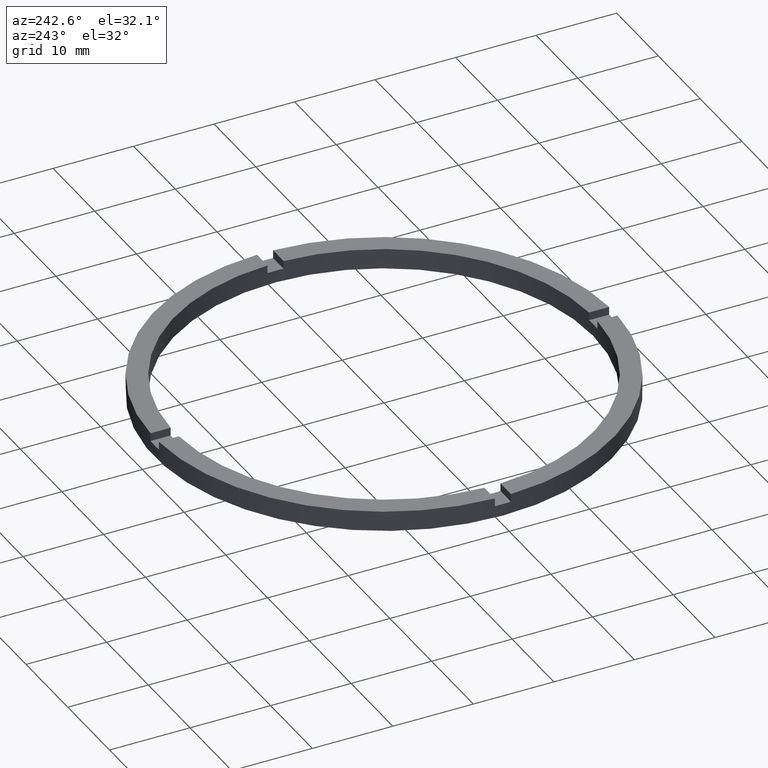
[diagram: clean part render]
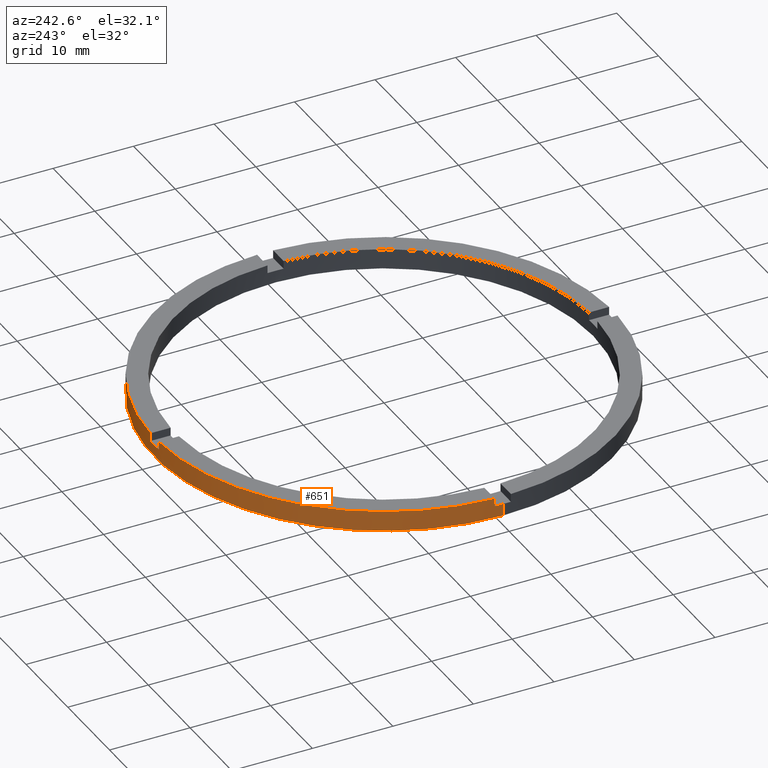
[diagram: same view with one face highlighted and labeled with its STEP entity id]
A machine part, auxiliary view. The second image highlights one B-rep face of the part: STEP entity #651.
In plain terms, the highlighted cylindrical surface (partial cylindrical patch) has radius 28.5 mm, axis along (-0, -0, -1).
Its self-contained STEP definition (entity closure, byte-faithful):
#12 = DIRECTION ( 'NONE',  ( 1.000000000000000000, 0.000000000000000000, 0.000000000000000000 ) ) ;
#25 = DIRECTION ( 'NONE',  ( -0.000000000000000000, -0.000000000000000000, -1.000000000000000000 ) ) ;
#33 = VERTEX_POINT ( 'NONE', #556 ) ;
#36 = ORIENTED_EDGE ( 'NONE', *, *, #635, .T. ) ;
#49 = ORIENTED_EDGE ( 'NONE', *, *, #539, .T. ) ;
#52 = DIRECTION ( 'NONE',  ( 0.000000000000000000, 0.000000000000000000, 1.000000000000000000 ) ) ;
#72 = ORIENTED_EDGE ( 'NONE', *, *, #192, .F. ) ;
#75 = CARTESIAN_POINT ( 'NONE',  ( 0.000000000000000000, 0.000000000000000000, 1.500000000000000000 ) ) ;
#81 = DIRECTION ( 'NONE',  ( 0.000000000000000000, 0.000000000000000000, 1.000000000000000000 ) ) ;
#84 = DIRECTION ( 'NONE',  ( 0.000000000000000000, 0.000000000000000000, 1.000000000000000000 ) ) ;
#103 = VERTEX_POINT ( 'NONE', #449 ) ;
#117 = CARTESIAN_POINT ( 'NONE',  ( 28.48245073725223264, 0.9999999999998432365, 2.500000000000000000 ) ) ;
#125 = CARTESIAN_POINT ( 'NONE',  ( -1.000000000000026423, 28.48245073725222909, 1.500000000000000000 ) ) ;
#127 = CARTESIAN_POINT ( 'NONE',  ( 0.000000000000000000, 0.000000000000000000, 0.000000000000000000 ) ) ;
#144 = DIRECTION ( 'NONE',  ( -0.000000000000000000, -0.000000000000000000, -1.000000000000000000 ) ) ;
#165 = CIRCLE ( 'NONE', #336, 28.50000000000000000 ) ;
#185 = VECTOR ( 'NONE', #658, 1000.000000000000000 ) ;
#187 = VECTOR ( 'NONE', #613, 1000.000000000000000 ) ;
#188 = DIRECTION ( 'NONE',  ( 0.000000000000000000, 0.000000000000000000, 1.000000000000000000 ) ) ;
#192 = EDGE_CURVE ( 'NONE', #557, #103, #165, .T. ) ;
#204 = DIRECTION ( 'NONE',  ( 1.000000000000000000, 0.000000000000000000, 0.000000000000000000 ) ) ;
#206 = AXIS2_PLACEMENT_3D ( 'NONE', #535, #188, #744 ) ;
#207 = LINE ( 'NONE', #663, #187 ) ;
#212 = CIRCLE ( 'NONE', #576, 28.50000000000000000 ) ;
#214 = VECTOR ( 'NONE', #332, 1000.000000000000000 ) ;
#216 = CIRCLE ( 'NONE', #564, 28.50000000000000000 ) ;
#221 = VERTEX_POINT ( 'NONE', #125 ) ;
#225 = AXIS2_PLACEMENT_3D ( 'NONE', #718, #144, #710 ) ;
#226 = DIRECTION ( 'NONE',  ( 1.000000000000000000, 0.000000000000000000, 0.000000000000000000 ) ) ;
#235 = CARTESIAN_POINT ( 'NONE',  ( -1.000000000000026423, 28.48245073725222909, 2.500000000000000000 ) ) ;
#240 = DIRECTION ( 'NONE',  ( 1.000000000000000000, 0.000000000000000000, 0.000000000000000000 ) ) ;
#242 = CARTESIAN_POINT ( 'NONE',  ( 28.48245073725223264, 0.9999999999998432365, 2.500000000000000000 ) ) ;
#262 = AXIS2_PLACEMENT_3D ( 'NONE', #661, #580, #240 ) ;
#264 = EDGE_CURVE ( 'NONE', #584, #221, #715, .T. ) ;
#272 = DIRECTION ( 'NONE',  ( -0.000000000000000000, -0.000000000000000000, -1.000000000000000000 ) ) ;
#279 = CARTESIAN_POINT ( 'NONE',  ( -28.50000000000000000, 0.000000000000000000, 2.500000000000000000 ) ) ;
#288 = CARTESIAN_POINT ( 'NONE',  ( 28.50000000000000000, 3.490243377569956456E-15, 2.500000000000000000 ) ) ;
#298 = VERTEX_POINT ( 'NONE', #387 ) ;
#301 = VERTEX_POINT ( 'NONE', #693 ) ;
#325 = ORIENTED_EDGE ( 'NONE', *, *, #514, .T. ) ;
#332 = DIRECTION ( 'NONE',  ( 0.000000000000000000, 0.000000000000000000, 1.000000000000000000 ) ) ;
#336 = AXIS2_PLACEMENT_3D ( 'NONE', #75, #84, #771 ) ;
#346 = ORIENTED_EDGE ( 'NONE', *, *, #616, .F. ) ;
#347 = ORIENTED_EDGE ( 'NONE', *, *, #692, .T. ) ;
#349 = CARTESIAN_POINT ( 'NONE',  ( -28.48245073725223264, 0.9999999999999729106, 2.500000000000000000 ) ) ;
#361 = ORIENTED_EDGE ( 'NONE', *, *, #442, .T. ) ;
#370 = AXIS2_PLACEMENT_3D ( 'NONE', #127, #81, #204 ) ;
#385 = CARTESIAN_POINT ( 'NONE',  ( -28.48245073725223264, 0.9999999999999729106, 2.500000000000000000 ) ) ;
#387 = CARTESIAN_POINT ( 'NONE',  ( 0.9999999999999735767, 28.48245073725223264, 2.500000000000000000 ) ) ;
#404 = CARTESIAN_POINT ( 'NONE',  ( 28.50000000000000000, 3.490243377569956456E-15, 0.000000000000000000 ) ) ;
#421 = EDGE_CURVE ( 'NONE', #761, #298, #212, .T. ) ;
#439 = CARTESIAN_POINT ( 'NONE',  ( 28.50000000000000000, 3.490243377569956456E-15, 1.500000000000000000 ) ) ;
#442 = EDGE_CURVE ( 'NONE', #584, #298, #207, .T. ) ;
#449 = CARTESIAN_POINT ( 'NONE',  ( 28.48245073725223264, 0.9999999999998432365, 1.500000000000000000 ) ) ;
#450 = CYLINDRICAL_SURFACE ( 'NONE', #225, 28.50000000000000000 ) ;
#452 = LINE ( 'NONE', #242, #482 ) ;
#455 = LINE ( 'NONE', #288, #185 ) ;
#464 = DIRECTION ( 'NONE',  ( -0.000000000000000000, -0.000000000000000000, -1.000000000000000000 ) ) ;
#465 = CIRCLE ( 'NONE', #370, 28.50000000000000000 ) ;
#481 = DIRECTION ( 'NONE',  ( 0.000000000000000000, 0.000000000000000000, 1.000000000000000000 ) ) ;
#482 = VECTOR ( 'NONE', #464, 1000.000000000000000 ) ;
#485 = EDGE_CURVE ( 'NONE', #579, #33, #751, .T. ) ;
#487 = ORIENTED_EDGE ( 'NONE', *, *, #617, .T. ) ;
#504 = EDGE_CURVE ( 'NONE', #625, #622, #754, .T. ) ;
#514 = EDGE_CURVE ( 'NONE', #557, #596, #455, .T. ) ;
#535 = CARTESIAN_POINT ( 'NONE',  ( 0.000000000000000000, 0.000000000000000000, 2.500000000000000000 ) ) ;
#539 = EDGE_CURVE ( 'NONE', #596, #33, #465, .T. ) ;
#546 = CARTESIAN_POINT ( 'NONE',  ( -28.50000000000000000, 0.000000000000000000, 1.500000000000000000 ) ) ;
#556 = CARTESIAN_POINT ( 'NONE',  ( -28.50000000000000000, 0.000000000000000000, 0.000000000000000000 ) ) ;
#557 = VERTEX_POINT ( 'NONE', #439 ) ;
#559 = EDGE_LOOP ( 'NONE', ( #72, #325, #49, #757, #346, #36, #770, #347, #600, #361, #561, #487 ) ) ;
#561 = ORIENTED_EDGE ( 'NONE', *, *, #421, .F. ) ;
#564 = AXIS2_PLACEMENT_3D ( 'NONE', #654, #481, #226 ) ;
#576 = AXIS2_PLACEMENT_3D ( 'NONE', #750, #52, #12 ) ;
#578 = CARTESIAN_POINT ( 'NONE',  ( 0.9999999999999735767, 28.48245073725223264, 1.500000000000000000 ) ) ;
#579 = VERTEX_POINT ( 'NONE', #546 ) ;
#580 = DIRECTION ( 'NONE',  ( 0.000000000000000000, -0.000000000000000000, 1.000000000000000000 ) ) ;
#584 = VERTEX_POINT ( 'NONE', #578 ) ;
#596 = VERTEX_POINT ( 'NONE', #404 ) ;
#600 = ORIENTED_EDGE ( 'NONE', *, *, #264, .F. ) ;
#613 = DIRECTION ( 'NONE',  ( 0.000000000000000000, 0.000000000000000000, 1.000000000000000000 ) ) ;
#616 = EDGE_CURVE ( 'NONE', #301, #579, #216, .T. ) ;
#617 = EDGE_CURVE ( 'NONE', #761, #103, #452, .T. ) ;
#622 = VERTEX_POINT ( 'NONE', #349 ) ;
#625 = VERTEX_POINT ( 'NONE', #738 ) ;
#635 = EDGE_CURVE ( 'NONE', #301, #622, #742, .T. ) ;
#651 = ADVANCED_FACE ( 'NONE', ( #746 ), #450, .T. ) ;
#654 = CARTESIAN_POINT ( 'NONE',  ( 0.000000000000000000, 0.000000000000000000, 1.500000000000000000 ) ) ;
#658 = DIRECTION ( 'NONE',  ( -0.000000000000000000, -0.000000000000000000, -1.000000000000000000 ) ) ;
#661 = CARTESIAN_POINT ( 'NONE',  ( 0.000000000000000000, 0.000000000000000000, 1.500000000000000000 ) ) ;
#663 = CARTESIAN_POINT ( 'NONE',  ( 0.9999999999999735767, 28.48245073725223264, 2.500000000000000000 ) ) ;
#692 = EDGE_CURVE ( 'NONE', #625, #221, #726, .T. ) ;
#693 = CARTESIAN_POINT ( 'NONE',  ( -28.48245073725223264, 0.9999999999999729106, 1.500000000000000000 ) ) ;
#710 = DIRECTION ( 'NONE',  ( -1.000000000000000000, 0.000000000000000000, 0.000000000000000000 ) ) ;
#715 = CIRCLE ( 'NONE', #262, 28.50000000000000000 ) ;
#718 = CARTESIAN_POINT ( 'NONE',  ( 0.000000000000000000, 0.000000000000000000, 2.500000000000000000 ) ) ;
#726 = LINE ( 'NONE', #235, #728 ) ;
#728 = VECTOR ( 'NONE', #25, 1000.000000000000000 ) ;
#738 = CARTESIAN_POINT ( 'NONE',  ( -1.000000000000026423, 28.48245073725222909, 2.500000000000000000 ) ) ;
#742 = LINE ( 'NONE', #385, #214 ) ;
#744 = DIRECTION ( 'NONE',  ( 1.000000000000000000, 0.000000000000000000, 0.000000000000000000 ) ) ;
#746 = FACE_OUTER_BOUND ( 'NONE', #559, .T. ) ;
#748 = VECTOR ( 'NONE', #272, 1000.000000000000000 ) ;
#750 = CARTESIAN_POINT ( 'NONE',  ( 0.000000000000000000, 0.000000000000000000, 2.500000000000000000 ) ) ;
#751 = LINE ( 'NONE', #279, #748 ) ;
#754 = CIRCLE ( 'NONE', #206, 28.50000000000000000 ) ;
#757 = ORIENTED_EDGE ( 'NONE', *, *, #485, .F. ) ;
#761 = VERTEX_POINT ( 'NONE', #117 ) ;
#770 = ORIENTED_EDGE ( 'NONE', *, *, #504, .F. ) ;
#771 = DIRECTION ( 'NONE',  ( 1.000000000000000000, 0.000000000000000000, 0.000000000000000000 ) ) ;